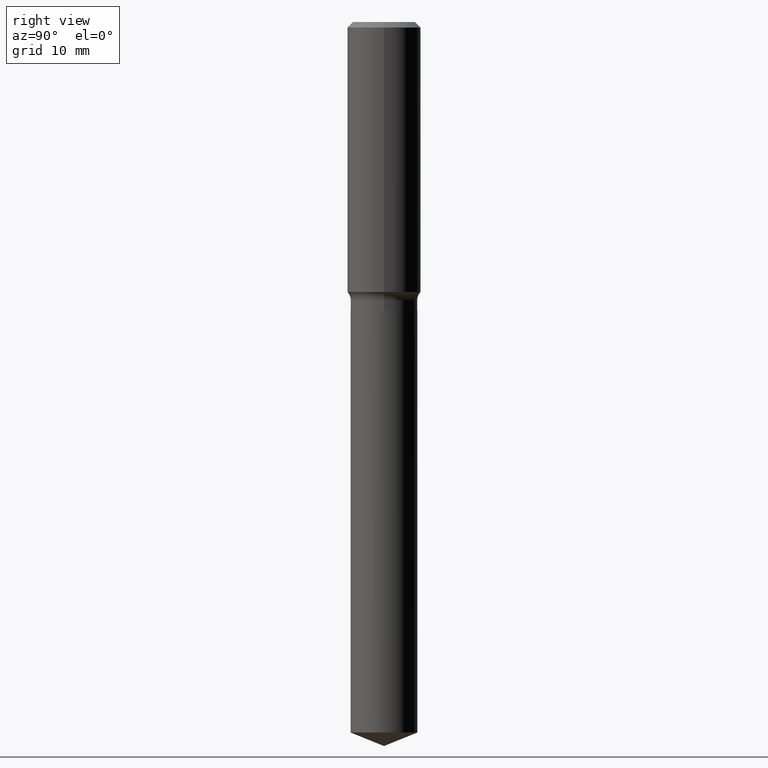
[diagram: clean part render]
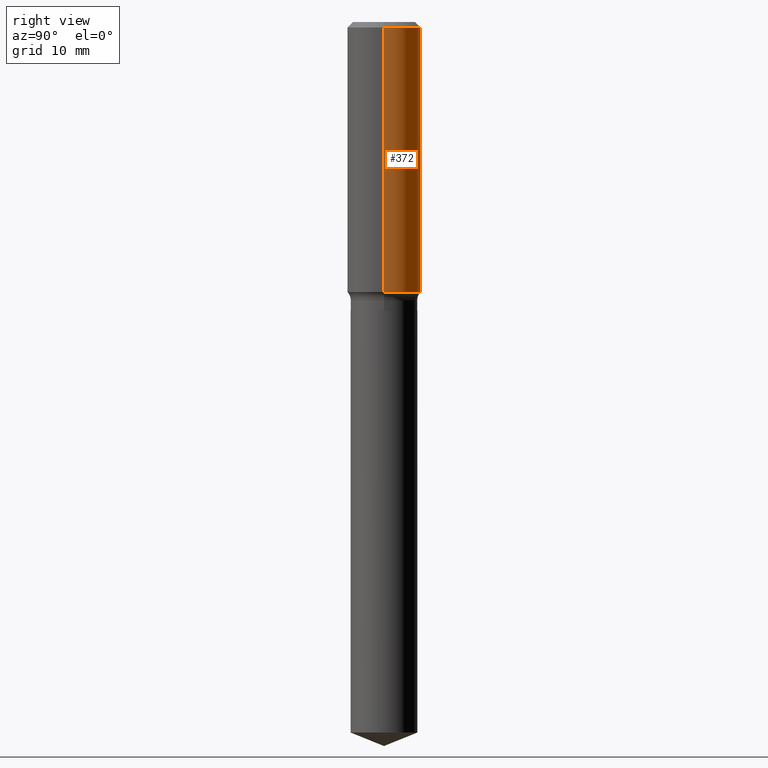
[diagram: same view with one face highlighted and labeled with its STEP entity id]
A machine part, right view. The second image highlights one B-rep face of the part: STEP entity #372.
In plain terms, the highlighted cylindrical surface (partial cylindrical patch) has radius 5.9995 mm, axis along (-0, 0, 1).
Its self-contained STEP definition (entity closure, byte-faithful):
#24 = EDGE_LOOP ( 'NONE', ( #204, #332, #197, #374 ) ) ;
#31 = VECTOR ( 'NONE', #272, 39.37007874015748143 ) ;
#36 = CYLINDRICAL_SURFACE ( 'NONE', #133, 0.2362000000000001043 ) ;
#45 = EDGE_CURVE ( 'NONE', #169, #313, #203, .T. ) ;
#47 = CARTESIAN_POINT ( 'NONE',  ( 8.664295980313993487E-31, -1.237031838352134079E-16, -0.03543000000000021826 ) ) ;
#75 = CARTESIAN_POINT ( 'NONE',  ( -0.2361999999999999933, -1.407814648925067803E-15, -0.03543000000000021826 ) ) ;
#111 = AXIS2_PLACEMENT_3D ( 'NONE', #278, #161, #280 ) ;
#125 = DIRECTION ( 'NONE',  ( 1.000000000000000000, -6.982962677686266711E-15, 0.000000000000000000 ) ) ;
#133 = AXIS2_PLACEMENT_3D ( 'NONE', #439, #226, #371 ) ;
#149 = CARTESIAN_POINT ( 'NONE',  ( -0.2362000000000001043, 1.678301941865357380E-15, -1.161852468318209317E-29 ) ) ;
#155 = LINE ( 'NONE', #149, #227 ) ;
#161 = DIRECTION ( 'NONE',  ( -2.445468806185136597E-29, 3.491481338843145583E-15, 1.000000000000000000 ) ) ;
#169 = VERTEX_POINT ( 'NONE', #289 ) ;
#171 = CARTESIAN_POINT ( 'NONE',  ( -0.2362000000000002153, -4.370228055880279997E-15, -1.732367843543948460 ) ) ;
#181 = CIRCLE ( 'NONE', #111, 0.2362000000000002153 ) ;
#189 = CARTESIAN_POINT ( 'NONE',  ( 0.2362000000000002153, -7.697905782215135283E-15, -1.732367843543948460 ) ) ;
#197 = ORIENTED_EDGE ( 'NONE', *, *, #45, .F. ) ;
#200 = VERTEX_POINT ( 'NONE', #171 ) ;
#203 = CIRCLE ( 'NONE', #425, 0.2361999999999999933 ) ;
#204 = ORIENTED_EDGE ( 'NONE', *, *, #474, .T. ) ;
#226 = DIRECTION ( 'NONE',  ( -2.445468806185136597E-29, 3.491481338843145583E-15, 1.000000000000000000 ) ) ;
#227 = VECTOR ( 'NONE', #300, 39.37007874015748143 ) ;
#272 = DIRECTION ( 'NONE',  ( -2.445468806185136877E-29, 3.491481338843145188E-15, 1.000000000000000000 ) ) ;
#278 = CARTESIAN_POINT ( 'NONE',  ( 4.236451522224939206E-29, -6.048529997745637969E-15, -1.732367843543948460 ) ) ;
#280 = DIRECTION ( 'NONE',  ( 1.000000000000000000, -6.982962677686266711E-15, 0.000000000000000000 ) ) ;
#289 = CARTESIAN_POINT ( 'NONE',  ( 0.2361999999999999933, -1.773078968304709514E-15, -0.03543000000000021826 ) ) ;
#300 = DIRECTION ( 'NONE',  ( -2.445468806185136877E-29, 3.491481338843145188E-15, 1.000000000000000000 ) ) ;
#313 = VERTEX_POINT ( 'NONE', #75 ) ;
#316 = EDGE_CURVE ( 'NONE', #200, #313, #155, .T. ) ;
#332 = ORIENTED_EDGE ( 'NONE', *, *, #316, .T. ) ;
#371 = DIRECTION ( 'NONE',  ( 1.000000000000000000, -6.982962677686266711E-15, 4.876176775795935793E-29 ) ) ;
#372 = ADVANCED_FACE ( 'NONE', ( #447 ), #36, .T. ) ;
#374 = ORIENTED_EDGE ( 'NONE', *, *, #487, .F. ) ;
#396 = VERTEX_POINT ( 'NONE', #189 ) ;
#425 = AXIS2_PLACEMENT_3D ( 'NONE', #47, #459, #125 ) ;
#439 = CARTESIAN_POINT ( 'NONE',  ( 0.000000000000000000, 0.000000000000000000, 0.000000000000000000 ) ) ;
#447 = FACE_OUTER_BOUND ( 'NONE', #24, .T. ) ;
#454 = CARTESIAN_POINT ( 'NONE',  ( 0.2362000000000001043, -1.649375784469496920E-15, 1.151752954443000508E-29 ) ) ;
#459 = DIRECTION ( 'NONE',  ( -2.445468806185136597E-29, 3.491481338843145583E-15, 1.000000000000000000 ) ) ;
#474 = EDGE_CURVE ( 'NONE', #396, #200, #181, .T. ) ;
#486 = LINE ( 'NONE', #454, #31 ) ;
#487 = EDGE_CURVE ( 'NONE', #396, #169, #486, .T. ) ;